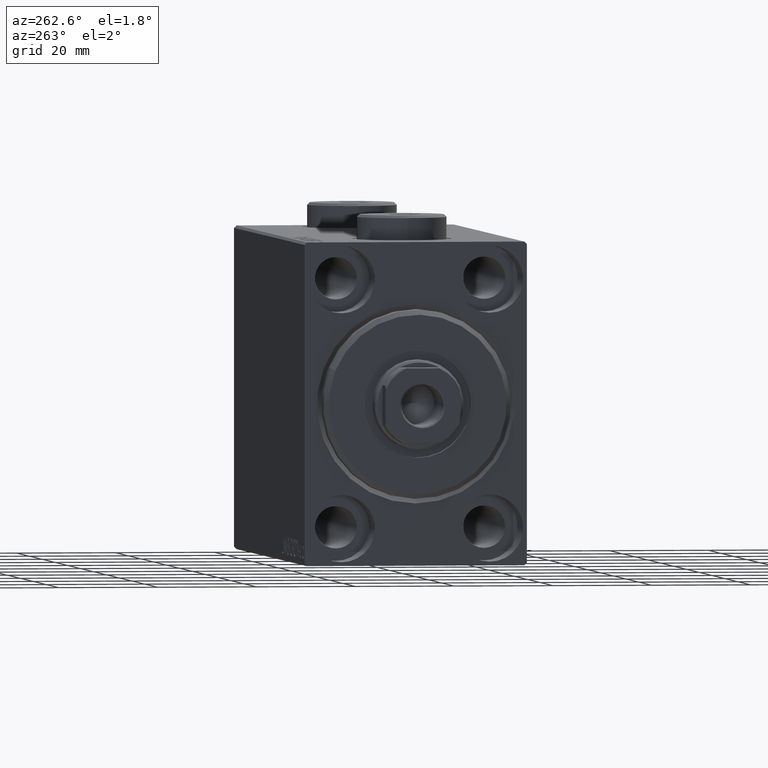
[diagram: clean part render]
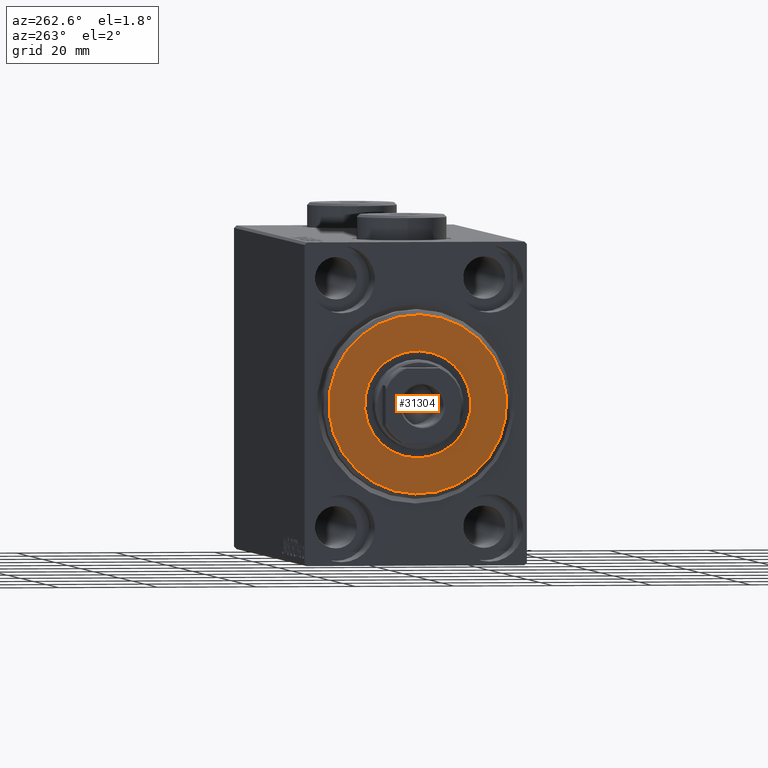
[diagram: same view with one face highlighted and labeled with its STEP entity id]
A machine part, auxiliary view. The second image highlights one B-rep face of the part: STEP entity #31304.
In plain terms, the highlighted planar face has unit normal (-1, 0, 0).
Its self-contained STEP definition (entity closure, byte-faithful):
#1721 = ORIENTED_EDGE ( 'NONE', *, *, #18842, .T. ) ;
#2922 = AXIS2_PLACEMENT_3D ( 'NONE', #36622, #25642, #19465 ) ;
#2923 = CARTESIAN_POINT ( 'NONE',  ( 3.000000000000000000, 1.316495309083404223E-15, -10.75000000000000000 ) ) ;
#3385 = DIRECTION ( 'NONE',  ( 0.000000000000000000, 0.000000000000000000, -1.000000000000000000 ) ) ;
#3507 = AXIS2_PLACEMENT_3D ( 'NONE', #26379, #40352, #5845 ) ;
#4872 = VERTEX_POINT ( 'NONE', #39885 ) ;
#5845 = DIRECTION ( 'NONE',  ( 0.000000000000000000, 0.000000000000000000, -1.000000000000000000 ) ) ;
#8980 = VERTEX_POINT ( 'NONE', #2923 ) ;
#9966 = EDGE_LOOP ( 'NONE', ( #34734, #1721 ) ) ;
#10130 = AXIS2_PLACEMENT_3D ( 'NONE', #11133, #38353, #3385 ) ;
#11133 = CARTESIAN_POINT ( 'NONE',  ( 3.000000000000000000, 0.000000000000000000, 0.000000000000000000 ) ) ;
#12475 = PLANE ( 'NONE',  #3507 ) ;
#16077 = DIRECTION ( 'NONE',  ( 0.000000000000000000, 0.000000000000000000, -1.000000000000000000 ) ) ;
#18583 = CIRCLE ( 'NONE', #39781, 17.99999999999999645 ) ;
#18842 = EDGE_CURVE ( 'NONE', #8980, #4872, #39744, .T. ) ;
#19457 = EDGE_CURVE ( 'NONE', #22836, #32208, #18583, .T. ) ;
#19465 = DIRECTION ( 'NONE',  ( 0.000000000000000000, 0.000000000000000000, -1.000000000000000000 ) ) ;
#19721 = DIRECTION ( 'NONE',  ( 1.000000000000000000, -0.000000000000000000, 0.000000000000000000 ) ) ;
#22578 = CIRCLE ( 'NONE', #2922, 17.99999999999999645 ) ;
#22836 = VERTEX_POINT ( 'NONE', #32285 ) ;
#23688 = AXIS2_PLACEMENT_3D ( 'NONE', #30353, #33076, #37001 ) ;
#25642 = DIRECTION ( 'NONE',  ( 1.000000000000000000, -0.000000000000000000, 0.000000000000000000 ) ) ;
#26379 = CARTESIAN_POINT ( 'NONE',  ( 3.000000000000000000, 0.000000000000000000, 0.000000000000000000 ) ) ;
#29815 = FACE_OUTER_BOUND ( 'NONE', #37095, .T. ) ;
#30353 = CARTESIAN_POINT ( 'NONE',  ( 3.000000000000000000, 0.000000000000000000, 0.000000000000000000 ) ) ;
#31304 = ADVANCED_FACE ( 'NONE', ( #29815, #37163 ), #12475, .T. ) ;
#32208 = VERTEX_POINT ( 'NONE', #44029 ) ;
#32285 = CARTESIAN_POINT ( 'NONE',  ( 3.000000000000000000, 0.000000000000000000, 17.99999999999999645 ) ) ;
#32850 = EDGE_CURVE ( 'NONE', #4872, #8980, #38617, .T. ) ;
#33076 = DIRECTION ( 'NONE',  ( -1.000000000000000000, 0.000000000000000000, -0.000000000000000000 ) ) ;
#34734 = ORIENTED_EDGE ( 'NONE', *, *, #32850, .T. ) ;
#36622 = CARTESIAN_POINT ( 'NONE',  ( 3.000000000000000000, 0.000000000000000000, 0.000000000000000000 ) ) ;
#37001 = DIRECTION ( 'NONE',  ( 0.000000000000000000, 0.000000000000000000, -1.000000000000000000 ) ) ;
#37031 = ORIENTED_EDGE ( 'NONE', *, *, #19457, .T. ) ;
#37095 = EDGE_LOOP ( 'NONE', ( #37031, #43431 ) ) ;
#37163 = FACE_BOUND ( 'NONE', #9966, .T. ) ;
#38353 = DIRECTION ( 'NONE',  ( -1.000000000000000000, 0.000000000000000000, -0.000000000000000000 ) ) ;
#38617 = CIRCLE ( 'NONE', #10130, 10.75000000000000000 ) ;
#39744 = CIRCLE ( 'NONE', #23688, 10.75000000000000000 ) ;
#39781 = AXIS2_PLACEMENT_3D ( 'NONE', #40536, #19721, #16077 ) ;
#39885 = CARTESIAN_POINT ( 'NONE',  ( 3.000000000000000000, 0.000000000000000000, 10.75000000000000000 ) ) ;
#40352 = DIRECTION ( 'NONE',  ( 1.000000000000000000, -0.000000000000000000, 0.000000000000000000 ) ) ;
#40536 = CARTESIAN_POINT ( 'NONE',  ( 3.000000000000000000, 0.000000000000000000, 0.000000000000000000 ) ) ;
#41496 = EDGE_CURVE ( 'NONE', #32208, #22836, #22578, .T. ) ;
#43431 = ORIENTED_EDGE ( 'NONE', *, *, #41496, .T. ) ;
#44029 = CARTESIAN_POINT ( 'NONE',  ( 3.000000000000000000, 2.265596578422603002E-15, -17.99999999999999645 ) ) ;